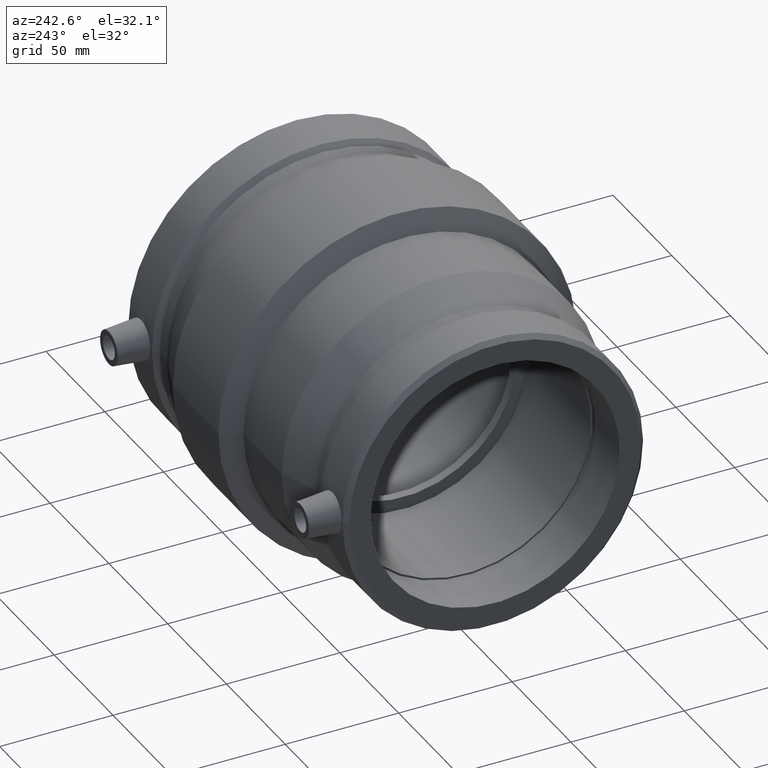
[diagram: clean part render]
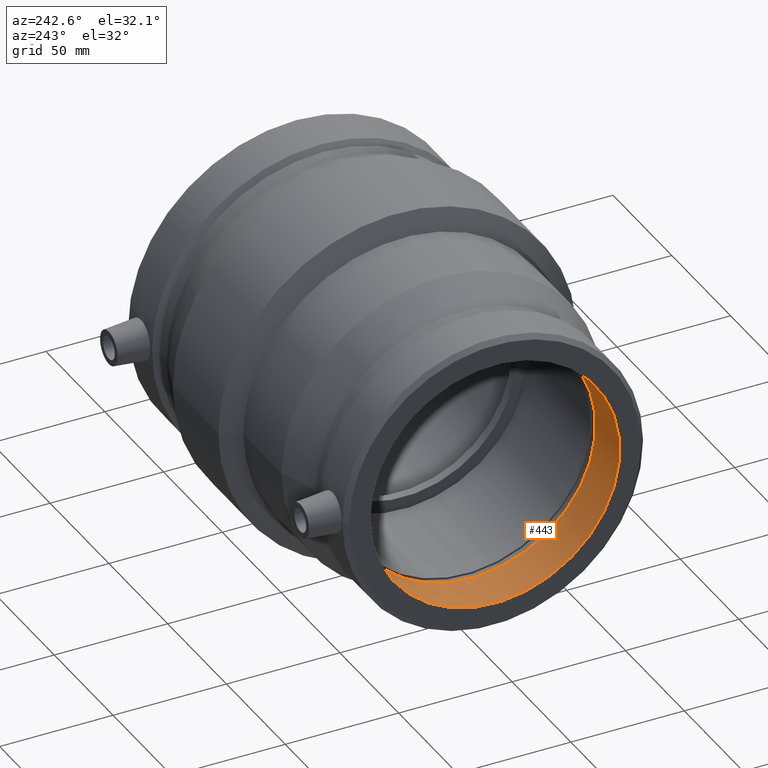
[diagram: same view with one face highlighted and labeled with its STEP entity id]
A machine part, auxiliary view. The second image highlights one B-rep face of the part: STEP entity #443.
In plain terms, the highlighted cylindrical surface (bore or boss wall) has radius 55 mm, axis along (1, 0, 0).
Its self-contained STEP definition (entity closure, byte-faithful):
#67=FACE_BOUND('',#199,.T.);
#82=CYLINDRICAL_SURFACE('',#521,55.);
#121=FACE_OUTER_BOUND('',#198,.T.);
#198=EDGE_LOOP('',(#391));
#199=EDGE_LOOP('',(#392));
#211=CIRCLE('',#470,55.);
#236=CIRCLE('',#520,55.);
#250=VERTEX_POINT('',#782);
#275=VERTEX_POINT('',#857);
#289=EDGE_CURVE('',#250,#250,#211,.T.);
#314=EDGE_CURVE('',#275,#275,#236,.T.);
#391=ORIENTED_EDGE('',*,*,#314,.T.);
#392=ORIENTED_EDGE('',*,*,#289,.F.);
#443=ADVANCED_FACE('',(#121,#67),#82,.F.);
#470=AXIS2_PLACEMENT_3D('',#783,#572,#573);
#520=AXIS2_PLACEMENT_3D('',#858,#672,#673);
#521=AXIS2_PLACEMENT_3D('',#859,#674,#675);
#572=DIRECTION('center_axis',(1.,0.,0.));
#573=DIRECTION('ref_axis',(0.,0.,-1.));
#672=DIRECTION('center_axis',(1.,0.,0.));
#673=DIRECTION('ref_axis',(0.,0.,-1.));
#674=DIRECTION('center_axis',(1.,0.,0.));
#675=DIRECTION('ref_axis',(0.,1.,0.));
#782=CARTESIAN_POINT('',(-85.5,55.,0.));
#783=CARTESIAN_POINT('Origin',(-85.5,0.,0.));
#857=CARTESIAN_POINT('',(-64.8681,55.,0.));
#858=CARTESIAN_POINT('Origin',(-64.8681,0.,0.));
#859=CARTESIAN_POINT('Origin',(-75.18405,0.,0.));